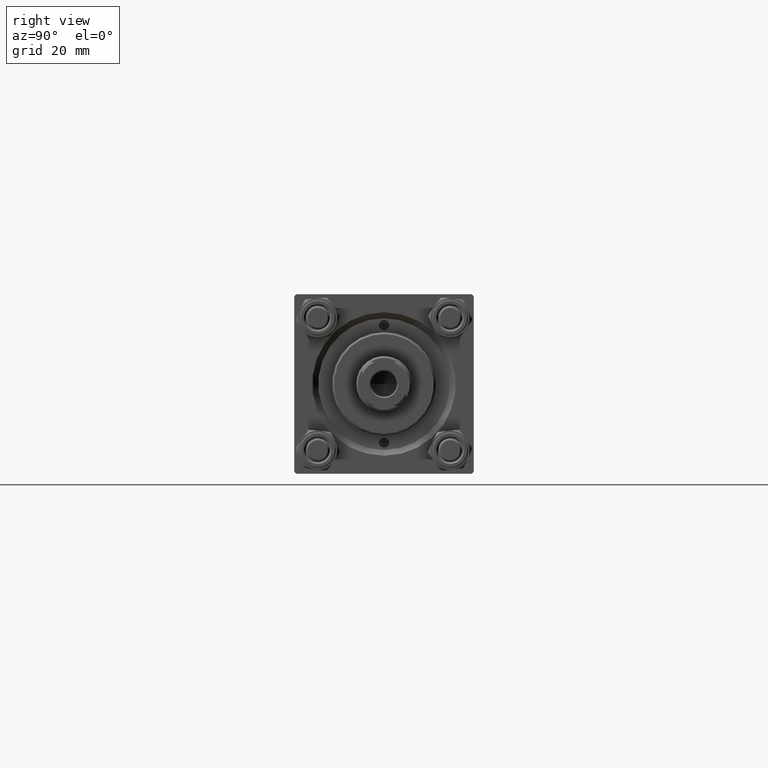
[diagram: clean part render]
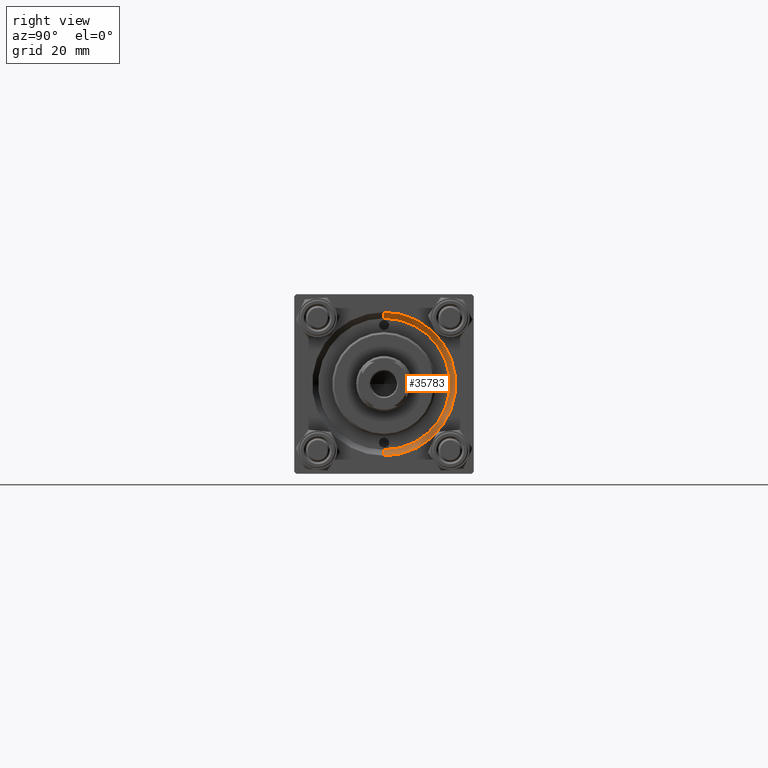
[diagram: same view with one face highlighted and labeled with its STEP entity id]
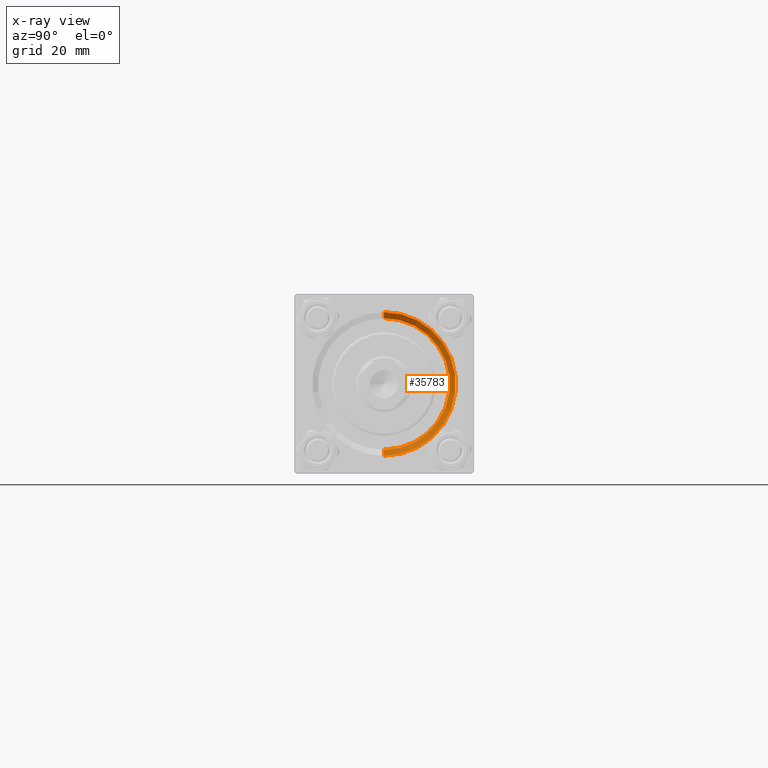
[diagram: x-ray of the same camera — body ghosted, the highlighted face saturated]
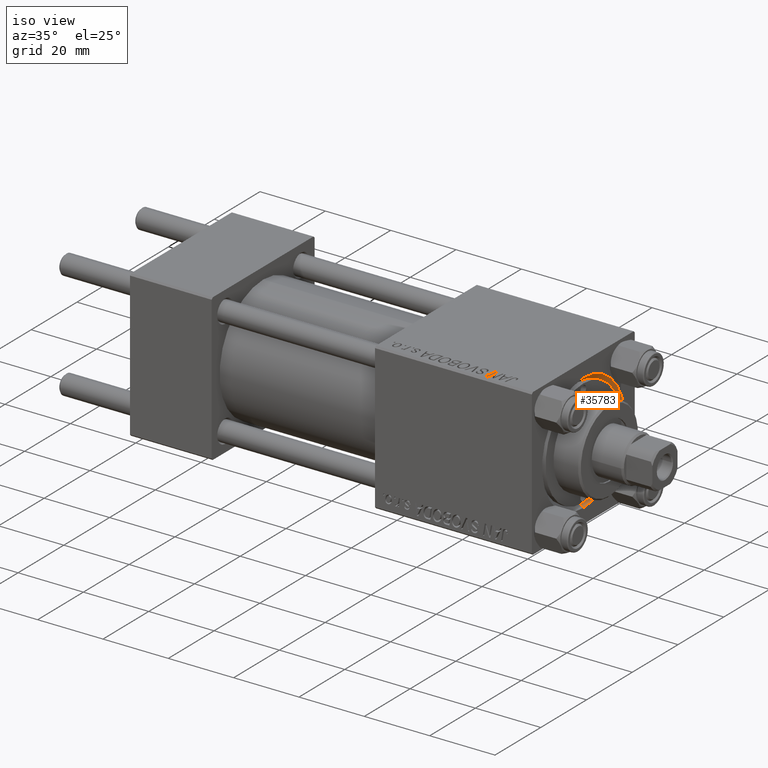
[diagram: same view with one face highlighted and labeled with its STEP entity id]
A machine part, right view. The second image highlights one B-rep face of the part: STEP entity #35783.
The next image is the same camera in x-ray: the body ghosted, the highlighted face saturated — about 0% of this face is hidden behind the body in this view.
A second angle (iso view) of the same face is appended — the face is thin or edge-on in the first view.
In plain terms, the highlighted conical surface has half-angle 45 deg.
Its self-contained STEP definition (entity closure, byte-faithful):
#655 = LINE ( 'NONE', #16051, #10115 ) ;
#1637 = LINE ( 'NONE', #9201, #7280 ) ;
#1759 = EDGE_CURVE ( 'NONE', #34523, #48832, #655, .T. ) ;
#2079 = DIRECTION ( 'NONE',  ( 0.7071067811865474617, 8.659560562354932858E-17, 0.7071067811865474617 ) ) ;
#4106 = AXIS2_PLACEMENT_3D ( 'NONE', #40394, #37357, #33813 ) ;
#4267 = CARTESIAN_POINT ( 'NONE',  ( 121.5000000000000142, 2.020667218593133100E-15, 16.50000000000000000 ) ) ;
#5398 = CARTESIAN_POINT ( 'NONE',  ( 121.5000000000000142, 0.000000000000000000, -16.50000000000000000 ) ) ;
#7280 = VECTOR ( 'NONE', #20838, 1000.000000000000114 ) ;
#8072 = ORIENTED_EDGE ( 'NONE', *, *, #32289, .T. ) ;
#9047 = EDGE_LOOP ( 'NONE', ( #21203, #25620, #8072, #43711 ) ) ;
#9201 = CARTESIAN_POINT ( 'NONE',  ( 121.5000000000000142, 0.000000000000000000, -16.50000000000000000 ) ) ;
#10115 = VECTOR ( 'NONE', #2079, 1000.000000000000114 ) ;
#13825 = FACE_OUTER_BOUND ( 'NONE', #9047, .T. ) ;
#15627 = DIRECTION ( 'NONE',  ( 1.000000000000000000, 0.000000000000000000, 0.000000000000000000 ) ) ;
#16051 = CARTESIAN_POINT ( 'NONE',  ( 121.5000000000000142, 2.020667218593133100E-15, 16.50000000000000000 ) ) ;
#20838 = DIRECTION ( 'NONE',  ( 0.7071067811865474617, 0.000000000000000000, -0.7071067811865474617 ) ) ;
#21203 = ORIENTED_EDGE ( 'NONE', *, *, #1759, .F. ) ;
#22783 = AXIS2_PLACEMENT_3D ( 'NONE', #42728, #38918, #31344 ) ;
#23414 = VERTEX_POINT ( 'NONE', #5398 ) ;
#24992 = AXIS2_PLACEMENT_3D ( 'NONE', #38895, #15627, #37898 ) ;
#25620 = ORIENTED_EDGE ( 'NONE', *, *, #34512, .F. ) ;
#31344 = DIRECTION ( 'NONE',  ( 0.000000000000000000, 0.000000000000000000, 1.000000000000000000 ) ) ;
#31683 = CIRCLE ( 'NONE', #22783, 18.00000000000000355 ) ;
#32289 = EDGE_CURVE ( 'NONE', #23414, #38977, #1637, .T. ) ;
#33587 = CARTESIAN_POINT ( 'NONE',  ( 123.0000000000000142, 0.000000000000000000, -18.00000000000000355 ) ) ;
#33813 = DIRECTION ( 'NONE',  ( 0.000000000000000000, 0.000000000000000000, -1.000000000000000000 ) ) ;
#34512 = EDGE_CURVE ( 'NONE', #23414, #34523, #40336, .T. ) ;
#34523 = VERTEX_POINT ( 'NONE', #4267 ) ;
#35783 = ADVANCED_FACE ( 'NONE', ( #13825 ), #49331, .F. ) ;
#37138 = CARTESIAN_POINT ( 'NONE',  ( 123.0000000000000142, 2.204364238465235822E-15, 18.00000000000000355 ) ) ;
#37357 = DIRECTION ( 'NONE',  ( 1.000000000000000000, 0.000000000000000000, 0.000000000000000000 ) ) ;
#37898 = DIRECTION ( 'NONE',  ( 0.000000000000000000, 0.000000000000000000, 1.000000000000000000 ) ) ;
#38895 = CARTESIAN_POINT ( 'NONE',  ( 121.5000000000000142, 0.000000000000000000, 0.000000000000000000 ) ) ;
#38918 = DIRECTION ( 'NONE',  ( -1.000000000000000000, 0.000000000000000000, -0.000000000000000000 ) ) ;
#38977 = VERTEX_POINT ( 'NONE', #33587 ) ;
#40336 = CIRCLE ( 'NONE', #24992, 16.50000000000000000 ) ;
#40394 = CARTESIAN_POINT ( 'NONE',  ( 121.5000000000000142, 0.000000000000000000, 0.000000000000000000 ) ) ;
#42728 = CARTESIAN_POINT ( 'NONE',  ( 123.0000000000000142, 0.000000000000000000, 0.000000000000000000 ) ) ;
#43711 = ORIENTED_EDGE ( 'NONE', *, *, #44253, .F. ) ;
#44253 = EDGE_CURVE ( 'NONE', #48832, #38977, #31683, .T. ) ;
#48832 = VERTEX_POINT ( 'NONE', #37138 ) ;
#49331 = CONICAL_SURFACE ( 'NONE', #4106, 16.50000000000000000, 0.7853981633974482790 ) ;